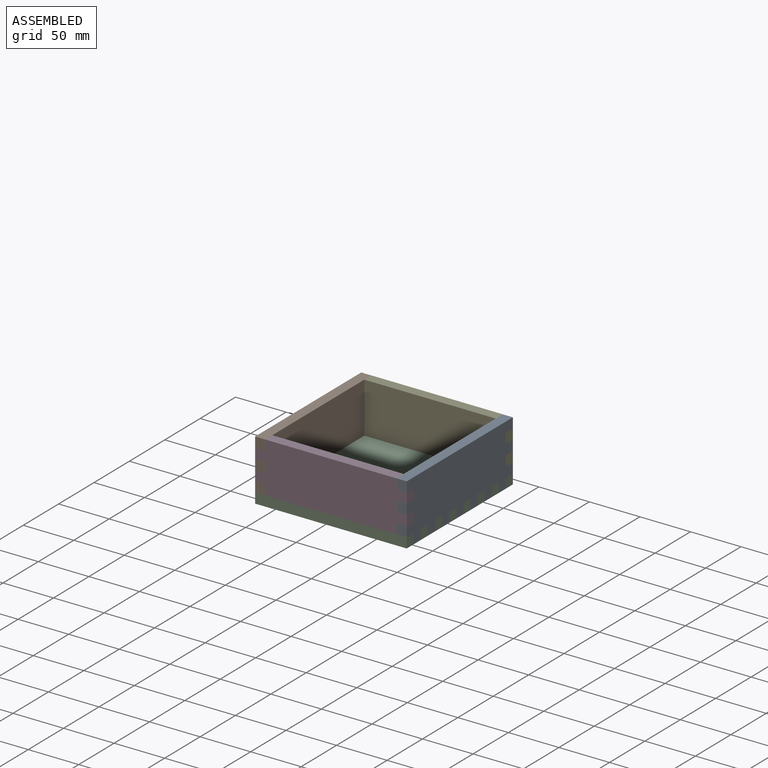
[diagram: assembled view]
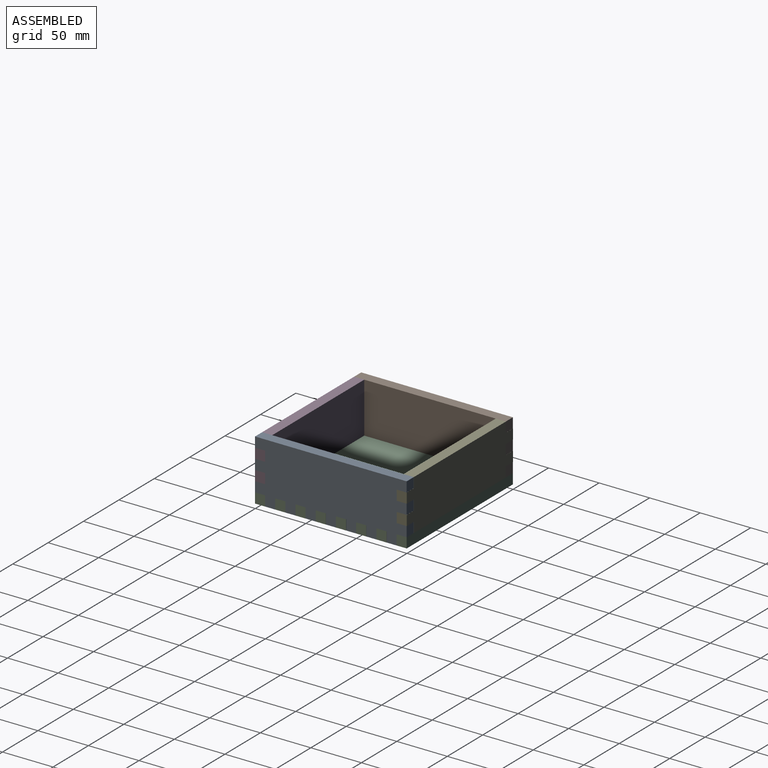
[diagram: assembled view, second angle]
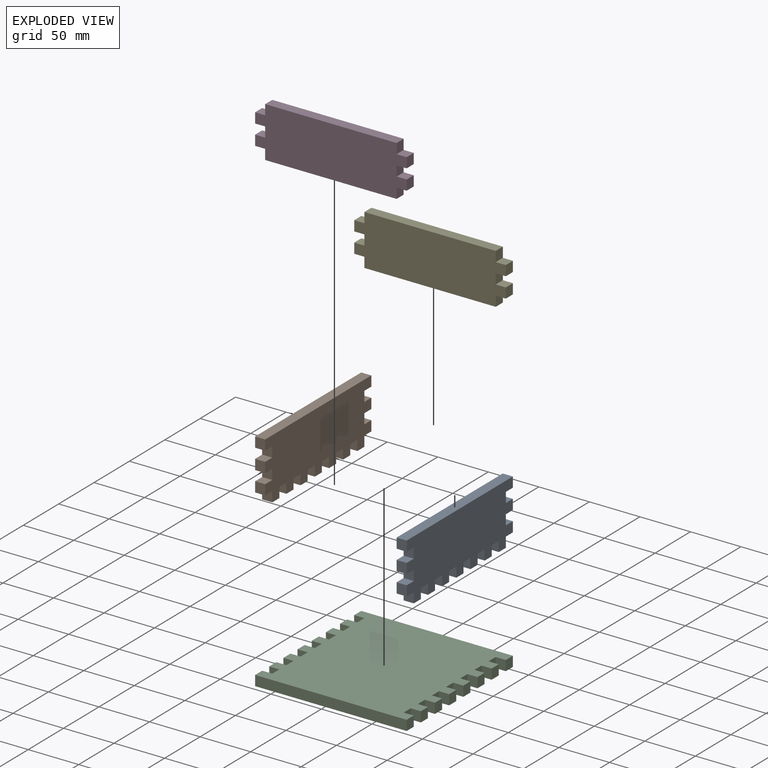
[diagram: exploded view]
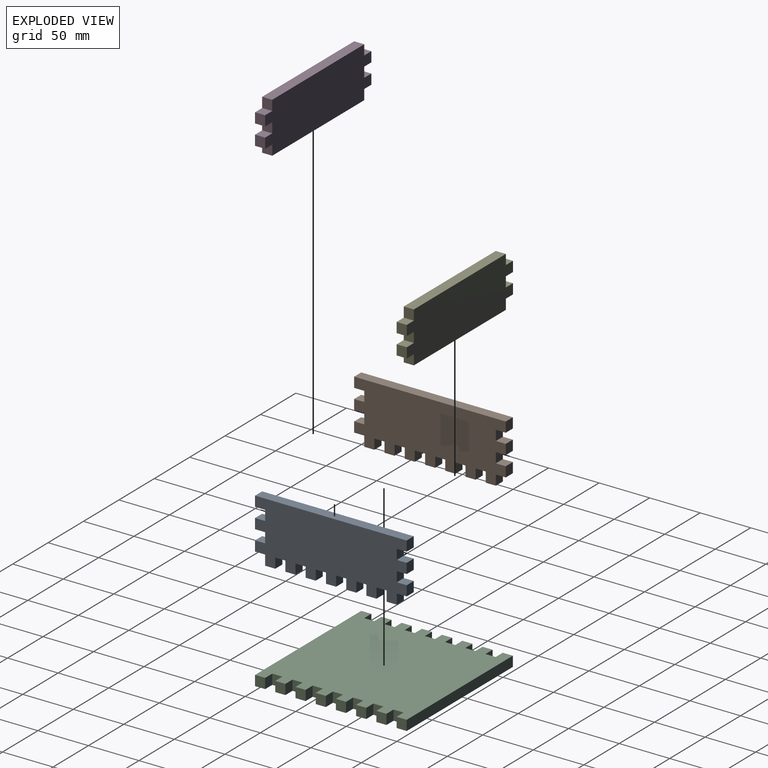
[diagram: exploded view, second angle]
ASSEMBLY  parts=5 mates=4
PART A: 50 faces, bbox 10x150x60 mm
  f0: plane 10x10mm, normal (0,1,0), area 100mm2, adj f1,f47,f48,f49
  f1: plane 10x10mm, normal (0,0,-1), area 100mm2, adj f0,f2,f48,f49
  f2: plane 10x10mm, normal (0,-1,0), area 100mm2, adj f1,f3,f48,f49
  f3: plane 10x10mm, normal (0,0,-1), area 100mm2, adj f2,f4,f48,f49
  f4: plane 10x10mm, normal (0,1,0), area 100mm2, adj f3,f5,f48,f49
  f5: plane 10x10mm, normal (0,0,-1), area 100mm2, adj f4,f6,f48,f49
  f6: plane 10x10mm, normal (0,-1,0), area 100mm2, adj f5,f7,f48,f49
  f7: plane 10x10mm, normal (0,0,-1), area 100mm2, adj f6,f8,f48,f49
  f8: plane 10x10mm, normal (0,1,0), area 100mm2, adj f7,f9,f48,f49
  f9: plane 10.17x10mm, normal (0,0,-1), area 101.7mm2, adj f8,f10,f48,f49
  f10: plane 10x10mm, normal (0,-1,0), area 100mm2, adj f9,f11,f48,f49
  f11: plane 10x10mm, normal (0,0,-1), area 100mm2, adj f10,f12,f48,f49
  f12: plane 10x10mm, normal (0,1,0), area 100mm2, adj f11,f13,f48,f49
  f13: plane 10x10mm, normal (0,0,-1), area 100mm2, adj f12,f14,f48,f49
  f14: plane 10x10mm, normal (0,-1,0), area 100mm2, adj f13,f15,f48,f49
  f15: plane 10x10mm, normal (0,0,-1), area 100mm2, adj f14,f16,f48,f49
  f16: plane 10x10mm, normal (0,1,0), area 100mm2, adj f15,f17,f48,f49
  f17: plane 10x10mm, normal (0,0,-1), area 100mm2, adj f16,f18,f48,f49
  f18: plane 10x10mm, normal (0,-1,0), area 100mm2, adj f17,f19,f48,f49
  f19: plane 10x10mm, normal (0,0,-1), area 100mm2, adj f18,f20,f48,f49
  f20: plane 10x10mm, normal (0,1,0), area 100mm2, adj f19,f21,f48,f49
  f21: plane 10x10mm, normal (0,0,-1), area 100mm2, adj f20,f22,f48,f49
  f22: plane 10x10mm, normal (0,-1,0), area 100mm2, adj f21,f23,f48,f49
  f23: plane 10x10mm, normal (0,0,-1), area 100mm2, adj f22,f24,f48,f49
  f24: plane 10x10mm, normal (0,1,0), area 100mm2, adj f23,f25,f48,f49
  f25: plane 10x9.83mm, normal (0,0,-1), area 98.3mm2, adj f24,f26,f48,f49
  f26: plane 10x10mm, normal (0,1,0), area 100mm2, adj f25,f27,f48,f49
  f27: plane 10x9.83mm, normal (0,0,1), area 98.3mm2, adj f26,f28,f48,f49
  f28: plane 10x10mm, normal (0,1,0), area 100mm2, adj f27,f29,f48,f49
  f29: plane 10x9.83mm, normal (0,0,-1), area 98.3mm2, adj f28,f30,f48,f49
  f30: plane 10x10mm, normal (0,1,0), area 100mm2, adj f29,f31,f48,f49
  f31: plane 10x9.83mm, normal (0,0,1), area 98.3mm2, adj f30,f32,f48,f49
  f32: plane 10x10mm, normal (0,1,0), area 100mm2, adj f31,f33,f48,f49
  f33: plane 10x9.83mm, normal (0,0,-1), area 98.3mm2, adj f32,f34,f48,f49
  f34: plane 10x10mm, normal (0,1,0), area 100mm2, adj f33,f35,f48,f49
  f35: plane 150x10mm, normal (0,0,1), area 1500mm2, adj f34,f36,f48,f49
  f36: plane 10x10mm, normal (0,-1,0), area 100mm2, adj f35,f37,f48,f49
  f37: plane 10x10mm, normal (0,0,-1), area 100mm2, adj f36,f38,f48,f49
  f38: plane 10x10mm, normal (0,-1,0), area 100mm2, adj f37,f39,f48,f49
  f39: plane 10x10mm, normal (0,0,1), area 100mm2, adj f38,f40,f48,f49
  f40: plane 10x10mm, normal (0,-1,0), area 100mm2, adj f39,f41,f48,f49
  f41: plane 10x10mm, normal (0,0,-1), area 100mm2, adj f40,f42,f48,f49
  f42: plane 10x10mm, normal (0,-1,0), area 100mm2, adj f41,f43,f48,f49
  f43: plane 10x10mm, normal (0,0,1), area 100mm2, adj f42,f44,f48,f49
  f44: plane 10x10mm, normal (0,-1,0), area 100mm2, adj f43,f45,f48,f49
  f45: plane 10x10mm, normal (0,0,-1), area 100mm2, adj f44,f46,f48,f49
  f46: plane 10x10mm, normal (0,-1,0), area 100mm2, adj f45,f47,f48,f49
  f47: plane 10x10mm, normal (0,0,-1), area 100mm2, adj f0,f46,f48,f49
  f48: plane 150x60mm, normal (1,0,0), area 7803.5mm2, adj f0,f1,f2,f3,f4,f5,f6,f7
  f49: plane 150x60mm, normal (-1,0,0), area 7803.5mm2, adj f0,f1,f2,f3,f4,f5,f6,f7
PART B: same geometry as A
PART C: 62 faces, bbox 150x150x10 mm
  f0: plane 10x10mm, normal (0,1,0), area 100mm2, adj f1,f59,f60,f61
  f1: plane 10x10mm, normal (-1,0,0), area 100mm2, adj f0,f2,f60,f61
  f2: plane 10x10mm, normal (0,-1,0), area 100mm2, adj f1,f3,f60,f61
  f3: plane 10x10mm, normal (-1,0,0), area 100mm2, adj f2,f4,f60,f61
  f4: plane 10x10mm, normal (0,1,0), area 100mm2, adj f3,f5,f60,f61
  f5: plane 10x10mm, normal (-1,0,0), area 100mm2, adj f4,f6,f60,f61
  f6: plane 10x10mm, normal (0,-1,0), area 100mm2, adj f5,f7,f60,f61
  f7: plane 10x10mm, normal (-1,0,0), area 100mm2, adj f6,f8,f60,f61
  f8: plane 10x10mm, normal (0,1,0), area 100mm2, adj f7,f9,f60,f61
  f9: plane 10x10mm, normal (-1,0,0), area 100mm2, adj f8,f10,f60,f61
  f10: plane 10x10mm, normal (0,-1,0), area 100mm2, adj f9,f11,f60,f61
  f11: plane 10x10mm, normal (-1,0,0), area 100mm2, adj f10,f12,f60,f61
  f12: plane 10x10mm, normal (0,1,0), area 100mm2, adj f11,f13,f60,f61
  f13: plane 10x10mm, normal (-1,0,0), area 100mm2, adj f12,f14,f60,f61
  f14: plane 10x10mm, normal (0,-1,0), area 100mm2, adj f13,f15,f60,f61
  f15: plane 10x10mm, normal (-1,0,0), area 100mm2, adj f14,f16,f60,f61
  f16: plane 10x10mm, normal (0,1,0), area 100mm2, adj f15,f17,f60,f61
  f17: plane 10x10mm, normal (-1,0,0), area 100mm2, adj f16,f18,f60,f61
  f18: plane 10x10mm, normal (0,-1,0), area 100mm2, adj f17,f19,f60,f61
  f19: plane 10x10mm, normal (-1,0,0), area 100mm2, adj f18,f20,f60,f61
  f20: plane 10x10mm, normal (0,1,0), area 100mm2, adj f19,f21,f60,f61
  f21: plane 10x10mm, normal (-1,0,0), area 100mm2, adj f20,f22,f60,f61
  f22: plane 10x10mm, normal (0,-1,0), area 100mm2, adj f21,f23,f60,f61
  f23: plane 10x10mm, normal (-1,0,0), area 100mm2, adj f22,f24,f60,f61
  f24: plane 10x10mm, normal (0,1,0), area 100mm2, adj f23,f25,f60,f61
  f25: plane 10x10mm, normal (-1,0,0), area 100mm2, adj f24,f26,f60,f61
  f26: plane 150x10mm, normal (0,-1,0), area 1500mm2, adj f25,f27,f60,f61
  f27: plane 10x10mm, normal (1,0,0), area 100mm2, adj f26,f28,f60,f61
  f28: plane 10x10mm, normal (0,1,0), area 100mm2, adj f27,f29,f60,f61
  f29: plane 10x10mm, normal (1,0,0), area 100mm2, adj f28,f30,f60,f61
  f30: plane 10x10mm, normal (0,-1,0), area 100mm2, adj f29,f31,f60,f61
  f31: plane 10x10mm, normal (1,0,0), area 100mm2, adj f30,f32,f60,f61
  f32: plane 10x10mm, normal (0,1,0), area 100mm2, adj f31,f33,f60,f61
  f33: plane 10x10mm, normal (1,0,0), area 100mm2, adj f32,f34,f60,f61
  f34: plane 10x10mm, normal (0,-1,0), area 100mm2, adj f33,f35,f60,f61
  f35: plane 10x10mm, normal (1,0,0), area 100mm2, adj f34,f36,f60,f61
  f36: plane 10x10mm, normal (0,1,0), area 100mm2, adj f35,f37,f60,f61
  f37: plane 10x10mm, normal (1,0,0), area 100mm2, adj f36,f38,f60,f61
  f38: plane 10x10mm, normal (0,-1,0), area 100mm2, adj f37,f39,f60,f61
  f39: plane 10x10mm, normal (1,0,0), area 100mm2, adj f38,f40,f60,f61
  f40: plane 10x10mm, normal (0,1,0), area 100mm2, adj f39,f41,f60,f61
  f41: plane 10x10mm, normal (1,0,0), area 100mm2, adj f40,f42,f60,f61
  f42: plane 10x10mm, normal (0,-1,0), area 100mm2, adj f41,f43,f60,f61
  f43: plane 10x10mm, normal (1,0,0), area 100mm2, adj f42,f44,f60,f61
  f44: plane 10x10mm, normal (0,1,0), area 100mm2, adj f43,f45,f60,f61
  f45: plane 10x10mm, normal (1,0,0), area 100mm2, adj f44,f46,f60,f61
  f46: plane 10x10mm, normal (0,-1,0), area 100mm2, adj f45,f47,f60,f61
  f47: plane 10x10mm, normal (1,0,0), area 100mm2, adj f46,f48,f60,f61
  f48: plane 10x10mm, normal (0,1,0), area 100mm2, adj f47,f49,f60,f61
  f49: plane 10x10mm, normal (1,0,0), area 100mm2, adj f48,f50,f60,f61
  f50: plane 10x10mm, normal (0,-1,0), area 100mm2, adj f49,f51,f60,f61
  f51: plane 10x10mm, normal (1,0,0), area 100mm2, adj f50,f52,f60,f61
  f52: plane 10x10mm, normal (0,1,0), area 100mm2, adj f51,f53,f60,f61
  f53: plane 10x10mm, normal (1,0,0), area 100mm2, adj f52,f54,f60,f61
  f54: plane 10x10mm, normal (0,-1,0), area 100mm2, adj f53,f55,f60,f61
  f55: plane 10x10mm, normal (1,0,0), area 100mm2, adj f54,f56,f60,f61
  f56: plane 150x10mm, normal (0,1,0), area 1500mm2, adj f55,f57,f60,f61
  f57: plane 10x10mm, normal (-1,0,0), area 100mm2, adj f56,f58,f60,f61
  f58: plane 10x10mm, normal (0,-1,0), area 100mm2, adj f57,f59,f60,f61
  f59: plane 10x10mm, normal (-1,0,0), area 100mm2, adj f0,f58,f60,f61
  f60: plane 150x150mm, normal (0,0,1), area 21100mm2, adj f0,f1,f2,f3,f4,f5,f6,f7
  f61: plane 150x150mm, normal (0,0,-1), area 21100mm2, adj f0,f1,f2,f3,f4,f5,f6,f7
PART D: 22 faces, bbox 150x10x50 mm
  f0: plane 10x10mm, normal (0,0,-1), area 100mm2, adj f1,f19,f20,f21
  f1: plane 10x10mm, normal (-1,0,0), area 100mm2, adj f0,f2,f20,f21
  f2: plane 130x10mm, normal (0,0,-1), area 1300mm2, adj f1,f3,f20,f21
  f3: plane 10x10mm, normal (1,0,0), area 100mm2, adj f2,f4,f20,f21
  f4: plane 10x10mm, normal (0,0,-1), area 100mm2, adj f3,f5,f20,f21
  f5: plane 10x10mm, normal (1,0,0), area 100mm2, adj f4,f6,f20,f21
  f6: plane 10x10mm, normal (0,0,1), area 100mm2, adj f5,f7,f20,f21
  f7: plane 10x10mm, normal (1,0,0), area 100mm2, adj f6,f8,f20,f21
  f8: plane 10x10mm, normal (0,0,-1), area 100mm2, adj f7,f9,f20,f21
  f9: plane 10x10mm, normal (1,0,0), area 100mm2, adj f8,f10,f20,f21
  f10: plane 10x10mm, normal (0,0,1), area 100mm2, adj f9,f11,f20,f21
  f11: plane 10x10mm, normal (1,0,0), area 100mm2, adj f10,f12,f20,f21
  f12: plane 130x10mm, normal (0,0,1), area 1300mm2, adj f11,f13,f20,f21
  f13: plane 10x10mm, normal (-1,0,0), area 100mm2, adj f12,f14,f20,f21
  f14: plane 10x10mm, normal (0,0,1), area 100mm2, adj f13,f15,f20,f21
  f15: plane 10x10mm, normal (-1,0,0), area 100mm2, adj f14,f16,f20,f21
  f16: plane 10x10mm, normal (0,0,-1), area 100mm2, adj f15,f17,f20,f21
  f17: plane 10x10mm, normal (-1,0,0), area 100mm2, adj f16,f18,f20,f21
  f18: plane 10x10mm, normal (0,0,1), area 100mm2, adj f17,f19,f20,f21
  f19: plane 10x10mm, normal (-1,0,0), area 100mm2, adj f0,f18,f20,f21
  f20: plane 150x50mm, normal (0,-1,0), area 6900mm2, adj f0,f1,f2,f3,f4,f5,f6,f7
  f21: plane 150x50mm, normal (0,1,0), area 6900mm2, adj f0,f1,f2,f3,f4,f5,f6,f7
PART E: same geometry as D
PLACE A t=(-25.07,3.74,9.95)mm
PLACE B t=(-165.07,3.74,9.95)mm
PLACE C t=(-109.07,-30.72,6.55)mm
PLACE D t=(-48.55,-40.72,39.27)mm
PLACE E t=(-48.55,99.37,39.27)mm
MATE fastened D.f0 <-> B.f43  axis (0,0,-1) through (-165.07,-45.72,26.55)mm
MATE fastened A.f45 <-> C.f60  axis (0,0,-1) through (-15.07,-45.72,16.55)mm
MATE fastened B.f1 <-> C.f60  axis (0,0,-1) through (-165.07,-25.72,16.55)mm
MATE fastened E.f0 <-> B.f27  axis (0,0,-1) through (-165.07,94.37,26.55)mm
